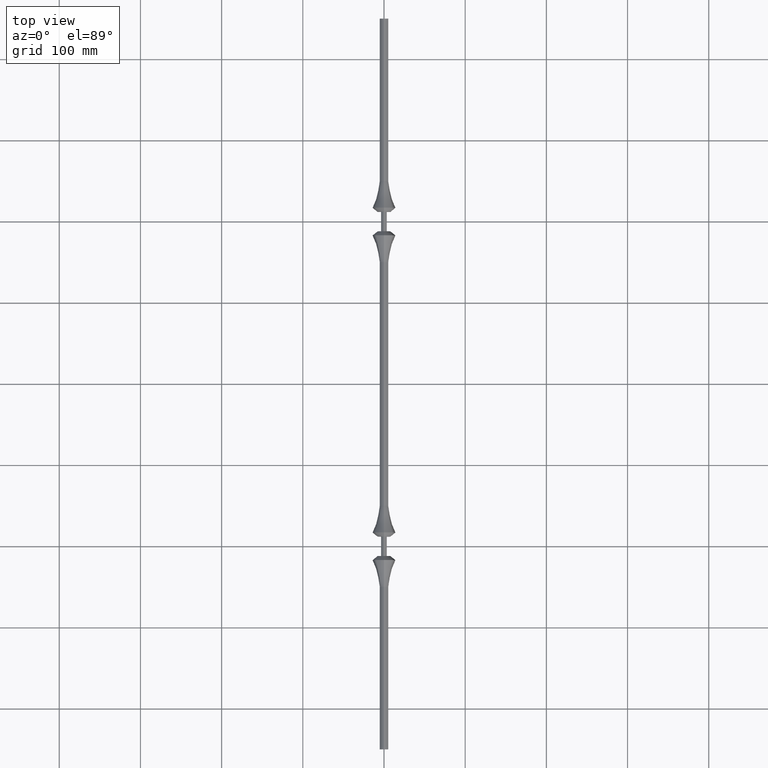
[diagram: clean part render]
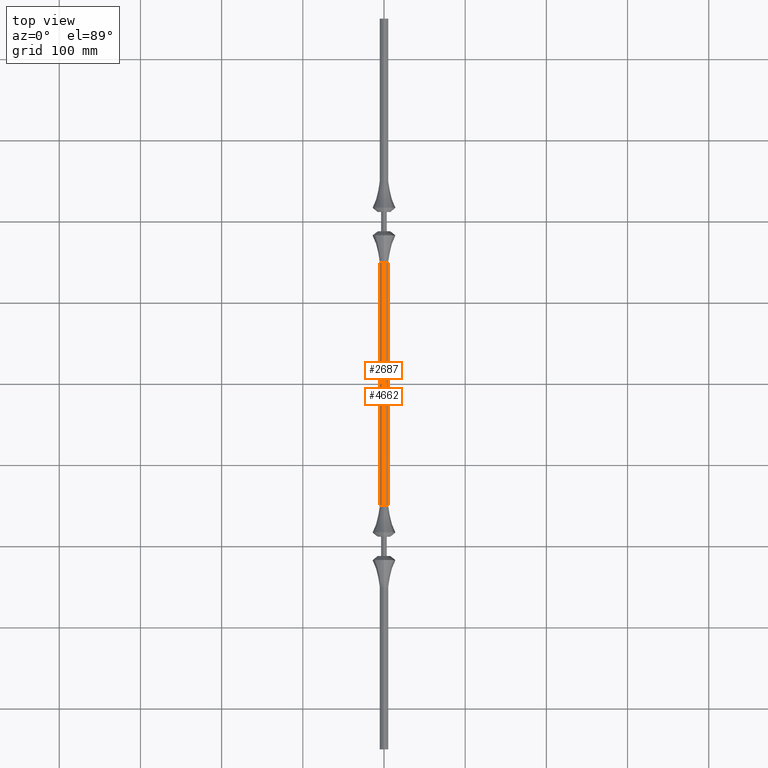
[diagram: same view with one multi-face feature highlighted, each face labeled with its STEP entity id]
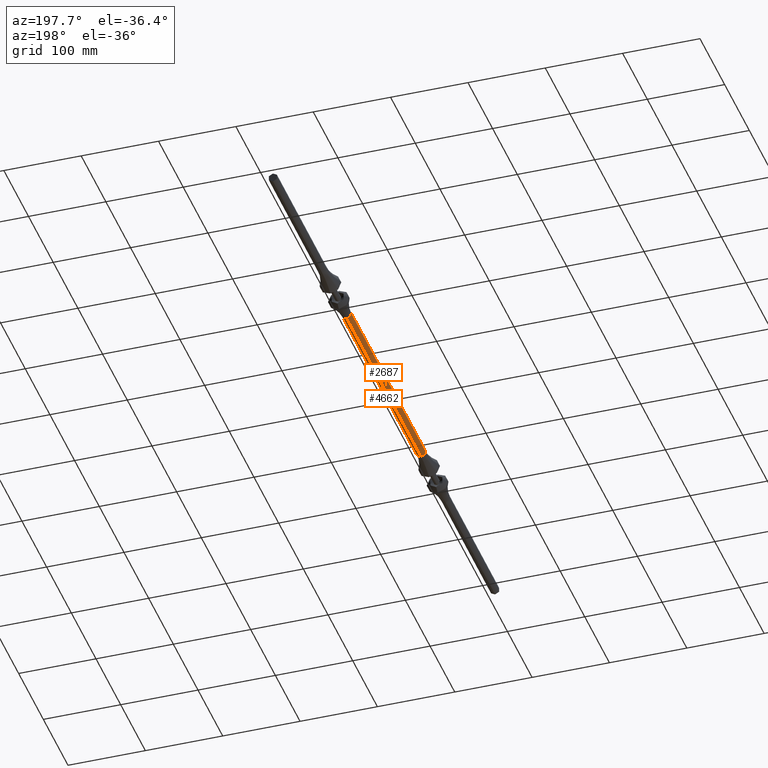
[diagram: same view with one multi-face feature highlighted, each face labeled with its STEP entity id]
A machine part, top view. The highlighted faces form ONE feature: a constant-radius fillet chain: 2 tangent blend faces with common blend radius 6 mm. The faces share edges in the B-rep.
A second angle (auxiliary view) of the same feature is appended — it is thin or edge-on in the first view.
Their STEP definitions:
[1] entity #2687 (Cylinder):
#44 = DIRECTION ( 'NONE',  ( -0.000000000000000000, -1.000000000000000000, -0.000000000000000000 ) ) ;
#1312 = VERTEX_POINT ( 'NONE', #12747 ) ;
#1377 = VECTOR ( 'NONE', #8065, 1000.000000000000000 ) ;
#1600 = LINE ( 'NONE', #5748, #17892 ) ;
#2687 = ADVANCED_FACE ( 'NONE', ( #12409 ), #4968, .T. ) ;
#3830 = AXIS2_PLACEMENT_3D ( 'NONE', #13768, #44, #5866 ) ;
#4037 = DIRECTION ( 'NONE',  ( 0.000000000000000000, 1.000000000000000000, 0.000000000000000000 ) ) ;
#4968 = CYLINDRICAL_SURFACE ( 'NONE', #3830, 6.000000000000000888 ) ;
#4984 = CARTESIAN_POINT ( 'NONE',  ( 0.000000000000000000, 150.0000000000000000, -6.000000000000000888 ) ) ;
#5748 = CARTESIAN_POINT ( 'NONE',  ( 7.347880794884120722E-16, 150.0000000000000000, 6.000000000000000888 ) ) ;
#5866 = DIRECTION ( 'NONE',  ( 0.000000000000000000, 0.000000000000000000, -1.000000000000000000 ) ) ;
#7021 = CARTESIAN_POINT ( 'NONE',  ( 0.000000000000000000, 150.0000000000000000, -6.000000000000000888 ) ) ;
#7198 = VERTEX_POINT ( 'NONE', #17766 ) ;
#8046 = ORIENTED_EDGE ( 'NONE', *, *, #16387, .T. ) ;
#8065 = DIRECTION ( 'NONE',  ( -0.000000000000000000, -1.000000000000000000, -0.000000000000000000 ) ) ;
#8831 = DIRECTION ( 'NONE',  ( -0.000000000000000000, -1.000000000000000000, -0.000000000000000000 ) ) ;
#9910 = EDGE_CURVE ( 'NONE', #1312, #7198, #18825, .T. ) ;
#10152 = DIRECTION ( 'NONE',  ( 0.000000000000000000, 1.000000000000000000, 0.000000000000000000 ) ) ;
#10153 = CARTESIAN_POINT ( 'NONE',  ( 7.347880794884120722E-16, 150.0000000000000000, 6.000000000000000888 ) ) ;
#10156 = EDGE_CURVE ( 'NONE', #12915, #7198, #1600, .T. ) ;
#11299 = EDGE_CURVE ( 'NONE', #17194, #12915, #13526, .T. ) ;
#11888 = AXIS2_PLACEMENT_3D ( 'NONE', #14861, #10152, #17992 ) ;
#12409 = FACE_OUTER_BOUND ( 'NONE', #19672, .T. ) ;
#12747 = CARTESIAN_POINT ( 'NONE',  ( 0.000000000000000000, -150.0000000000000000, -6.000000000000000888 ) ) ;
#12915 = VERTEX_POINT ( 'NONE', #10153 ) ;
#13324 = DIRECTION ( 'NONE',  ( 0.000000000000000000, 0.000000000000000000, 1.000000000000000000 ) ) ;
#13526 = CIRCLE ( 'NONE', #11888, 6.000000000000000888 ) ;
#13609 = AXIS2_PLACEMENT_3D ( 'NONE', #17642, #4037, #13324 ) ;
#13768 = CARTESIAN_POINT ( 'NONE',  ( 0.000000000000000000, 150.0000000000000000, 0.000000000000000000 ) ) ;
#14031 = LINE ( 'NONE', #4984, #1377 ) ;
#14475 = ORIENTED_EDGE ( 'NONE', *, *, #10156, .F. ) ;
#14861 = CARTESIAN_POINT ( 'NONE',  ( 0.000000000000000000, 150.0000000000000000, 0.000000000000000000 ) ) ;
#16378 = ORIENTED_EDGE ( 'NONE', *, *, #11299, .F. ) ;
#16387 = EDGE_CURVE ( 'NONE', #17194, #1312, #14031, .T. ) ;
#17194 = VERTEX_POINT ( 'NONE', #7021 ) ;
#17642 = CARTESIAN_POINT ( 'NONE',  ( 0.000000000000000000, -150.0000000000000000, 0.000000000000000000 ) ) ;
#17766 = CARTESIAN_POINT ( 'NONE',  ( 7.347880794884120722E-16, -150.0000000000000000, 6.000000000000000888 ) ) ;
#17892 = VECTOR ( 'NONE', #8831, 1000.000000000000000 ) ;
#17992 = DIRECTION ( 'NONE',  ( 0.000000000000000000, 0.000000000000000000, 1.000000000000000000 ) ) ;
#18825 = CIRCLE ( 'NONE', #13609, 6.000000000000000888 ) ;
#19507 = ORIENTED_EDGE ( 'NONE', *, *, #9910, .T. ) ;
#19672 = EDGE_LOOP ( 'NONE', ( #14475, #16378, #8046, #19507 ) ) ;
[2] entity #4662 (Cylinder):
#241 = CYLINDRICAL_SURFACE ( 'NONE', #12156, 6.000000000000000888 ) ;
#500 = DIRECTION ( 'NONE',  ( 0.000000000000000000, 0.000000000000000000, -1.000000000000000000 ) ) ;
#750 = ORIENTED_EDGE ( 'NONE', *, *, #10156, .T. ) ;
#1052 = ORIENTED_EDGE ( 'NONE', *, *, #16387, .F. ) ;
#1202 = EDGE_CURVE ( 'NONE', #7198, #1312, #12461, .T. ) ;
#1260 = DIRECTION ( 'NONE',  ( 0.000000000000000000, 0.000000000000000000, 1.000000000000000000 ) ) ;
#1312 = VERTEX_POINT ( 'NONE', #12747 ) ;
#1377 = VECTOR ( 'NONE', #8065, 1000.000000000000000 ) ;
#1600 = LINE ( 'NONE', #5748, #17892 ) ;
#1884 = CARTESIAN_POINT ( 'NONE',  ( 0.000000000000000000, -150.0000000000000000, 0.000000000000000000 ) ) ;
#2046 = EDGE_LOOP ( 'NONE', ( #13705, #750, #12265, #1052 ) ) ;
#2548 = AXIS2_PLACEMENT_3D ( 'NONE', #1884, #18243, #3082 ) ;
#2999 = DIRECTION ( 'NONE',  ( 0.000000000000000000, 1.000000000000000000, 0.000000000000000000 ) ) ;
#3082 = DIRECTION ( 'NONE',  ( 0.000000000000000000, 0.000000000000000000, 1.000000000000000000 ) ) ;
#4662 = ADVANCED_FACE ( 'NONE', ( #17196 ), #241, .T. ) ;
#4984 = CARTESIAN_POINT ( 'NONE',  ( 0.000000000000000000, 150.0000000000000000, -6.000000000000000888 ) ) ;
#5010 = EDGE_CURVE ( 'NONE', #12915, #17194, #18130, .T. ) ;
#5748 = CARTESIAN_POINT ( 'NONE',  ( 7.347880794884120722E-16, 150.0000000000000000, 6.000000000000000888 ) ) ;
#7021 = CARTESIAN_POINT ( 'NONE',  ( 0.000000000000000000, 150.0000000000000000, -6.000000000000000888 ) ) ;
#7198 = VERTEX_POINT ( 'NONE', #17766 ) ;
#8065 = DIRECTION ( 'NONE',  ( -0.000000000000000000, -1.000000000000000000, -0.000000000000000000 ) ) ;
#8831 = DIRECTION ( 'NONE',  ( -0.000000000000000000, -1.000000000000000000, -0.000000000000000000 ) ) ;
#10153 = CARTESIAN_POINT ( 'NONE',  ( 7.347880794884120722E-16, 150.0000000000000000, 6.000000000000000888 ) ) ;
#10156 = EDGE_CURVE ( 'NONE', #12915, #7198, #1600, .T. ) ;
#12156 = AXIS2_PLACEMENT_3D ( 'NONE', #18659, #15797, #500 ) ;
#12265 = ORIENTED_EDGE ( 'NONE', *, *, #1202, .T. ) ;
#12461 = CIRCLE ( 'NONE', #2548, 6.000000000000000888 ) ;
#12747 = CARTESIAN_POINT ( 'NONE',  ( 0.000000000000000000, -150.0000000000000000, -6.000000000000000888 ) ) ;
#12915 = VERTEX_POINT ( 'NONE', #10153 ) ;
#13705 = ORIENTED_EDGE ( 'NONE', *, *, #5010, .F. ) ;
#14031 = LINE ( 'NONE', #4984, #1377 ) ;
#15797 = DIRECTION ( 'NONE',  ( -0.000000000000000000, -1.000000000000000000, -0.000000000000000000 ) ) ;
#16387 = EDGE_CURVE ( 'NONE', #17194, #1312, #14031, .T. ) ;
#17046 = AXIS2_PLACEMENT_3D ( 'NONE', #18036, #2999, #1260 ) ;
#17194 = VERTEX_POINT ( 'NONE', #7021 ) ;
#17196 = FACE_OUTER_BOUND ( 'NONE', #2046, .T. ) ;
#17766 = CARTESIAN_POINT ( 'NONE',  ( 7.347880794884120722E-16, -150.0000000000000000, 6.000000000000000888 ) ) ;
#17892 = VECTOR ( 'NONE', #8831, 1000.000000000000000 ) ;
#18036 = CARTESIAN_POINT ( 'NONE',  ( 0.000000000000000000, 150.0000000000000000, 0.000000000000000000 ) ) ;
#18130 = CIRCLE ( 'NONE', #17046, 6.000000000000000888 ) ;
#18243 = DIRECTION ( 'NONE',  ( 0.000000000000000000, 1.000000000000000000, 0.000000000000000000 ) ) ;
#18659 = CARTESIAN_POINT ( 'NONE',  ( 0.000000000000000000, 150.0000000000000000, 0.000000000000000000 ) ) ;